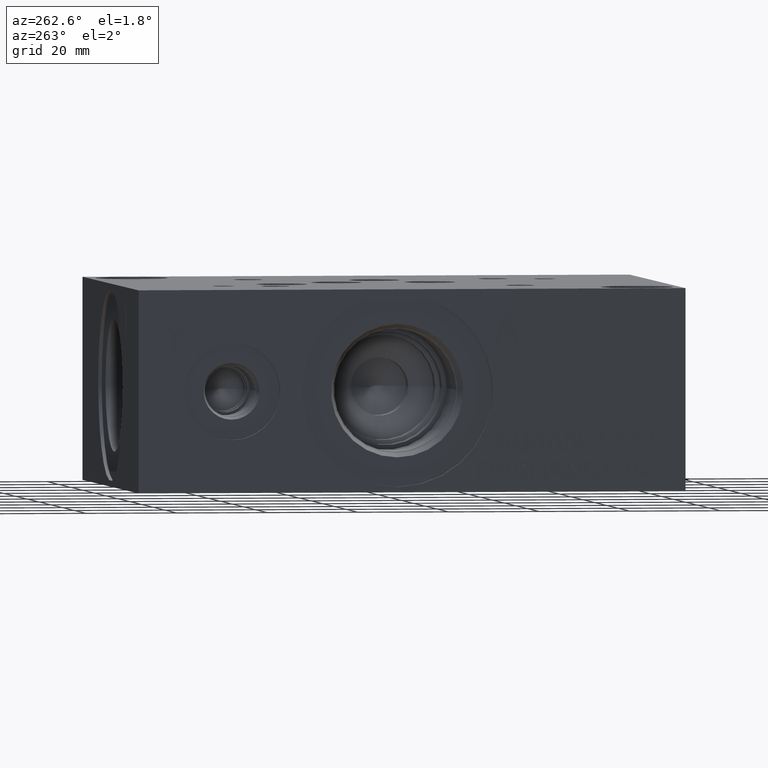
[diagram: clean part render]
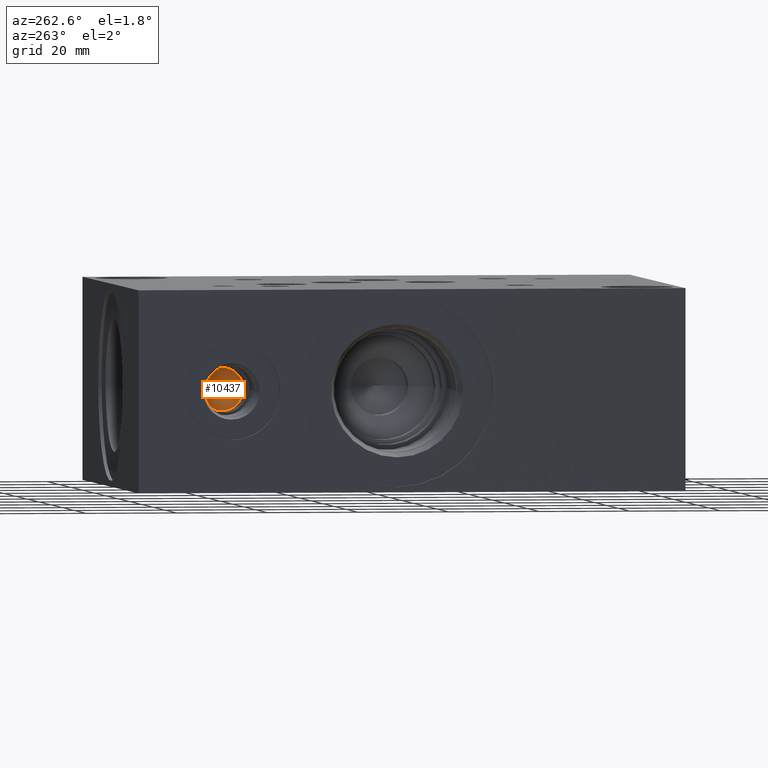
[diagram: same view with one face highlighted and labeled with its STEP entity id]
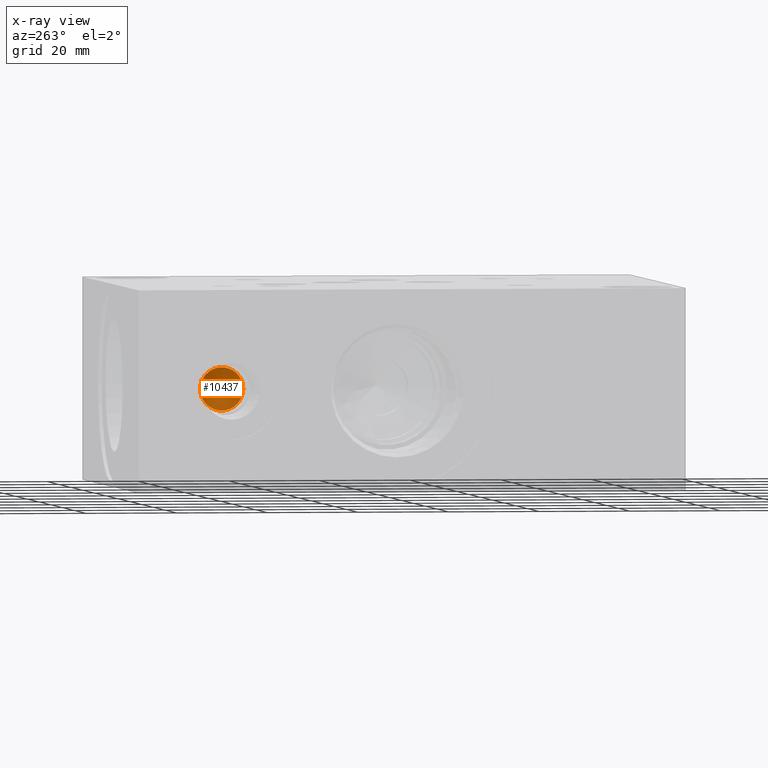
[diagram: x-ray of the same camera — body ghosted, the highlighted face saturated]
A machine part, auxiliary view. The second image highlights one B-rep face of the part: STEP entity #10437.
The next image is the same camera in x-ray: the body ghosted, the highlighted face saturated — about 0% of this face is hidden behind the body in this view.
In plain terms, the highlighted conical surface has half-angle 60 deg.
Its self-contained STEP definition (entity closure, byte-faithful):
#29=CONICAL_SURFACE('',#10948,2.38125,1.0471975511966);
#191=CIRCLE('',#10949,4.7625);
#192=CIRCLE('',#10950,4.7625);
#1218=FACE_OUTER_BOUND('',#1799,.T.);
#1799=EDGE_LOOP('',(#8896,#8897,#8898,#8899));
#2844=LINE('',#17662,#3849);
#3849=VECTOR('',#12935,2.38125);
#4790=VERTEX_POINT('',#17658);
#4791=VERTEX_POINT('',#17659);
#4792=VERTEX_POINT('',#17661);
#6198=EDGE_CURVE('',#4790,#4791,#191,.T.);
#6199=EDGE_CURVE('',#4791,#4792,#2844,.T.);
#6200=EDGE_CURVE('',#4791,#4790,#192,.T.);
#8896=ORIENTED_EDGE('',*,*,#6198,.T.);
#8897=ORIENTED_EDGE('',*,*,#6199,.T.);
#8898=ORIENTED_EDGE('',*,*,#6199,.F.);
#8899=ORIENTED_EDGE('',*,*,#6200,.T.);
#10437=ADVANCED_FACE('',(#1218),#29,.F.);
#10948=AXIS2_PLACEMENT_3D('',#17657,#12931,#12932);
#10949=AXIS2_PLACEMENT_3D('',#17660,#12933,#12934);
#10950=AXIS2_PLACEMENT_3D('',#17663,#12936,#12937);
#12931=DIRECTION('center_axis',(-1.,0.,0.));
#12932=DIRECTION('ref_axis',(0.,1.,0.));
#12933=DIRECTION('center_axis',(-1.,0.,0.));
#12934=DIRECTION('ref_axis',(0.,1.,0.));
#12935=DIRECTION('',(0.5,0.866025403784439,-1.06057523872491E-16));
#12936=DIRECTION('center_axis',(-1.,0.,0.));
#12937=DIRECTION('ref_axis',(0.,1.,0.));
#17657=CARTESIAN_POINT('Origin',(18.9864053285078,100.0252,22.225));
#17658=CARTESIAN_POINT('',(17.61159,104.7877,22.225));
#17659=CARTESIAN_POINT('',(17.61159,95.2627,22.225));
#17660=CARTESIAN_POINT('Origin',(17.61159,100.0252,22.225));
#17661=CARTESIAN_POINT('',(20.3612206570156,100.0252,22.225));
#17662=CARTESIAN_POINT('',(18.9864053285078,97.64395,22.225));
#17663=CARTESIAN_POINT('Origin',(17.61159,100.0252,22.225));